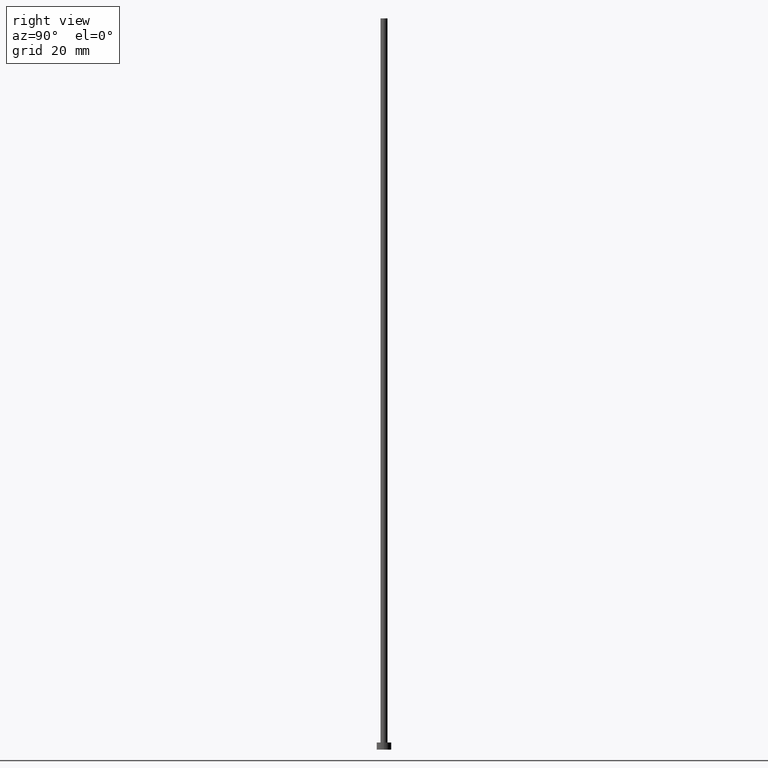
[diagram: clean part render]
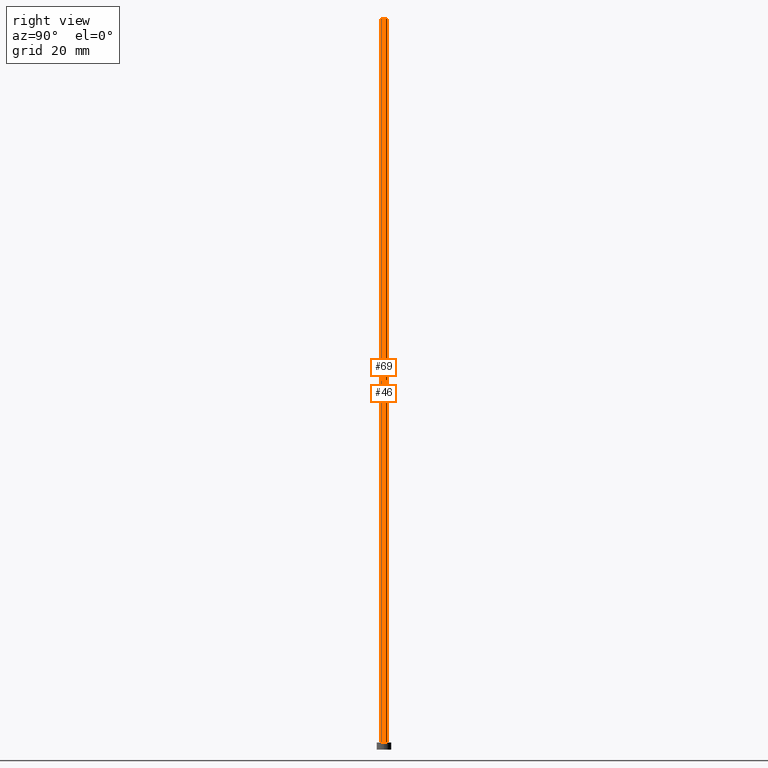
[diagram: same view with one multi-face feature highlighted, each face labeled with its STEP entity id]
A machine part, right view. The highlighted faces form ONE feature: a constant-radius fillet chain: 2 tangent blend faces with common blend radius 0.6 mm. The faces share edges in the B-rep.
Their STEP definitions:
[1] entity #69 (Cylinder):
#12 = EDGE_CURVE ( 'NONE', #224, #87, #51, .T. ) ;
#16 = VECTOR ( 'NONE', #76, 1000.000000000000000 ) ;
#33 = CYLINDRICAL_SURFACE ( 'NONE', #59, 0.5999999999999999778 ) ;
#36 = DIRECTION ( 'NONE',  ( -1.000000000000000000, 0.000000000000000000, 0.000000000000000000 ) ) ;
#38 = VERTEX_POINT ( 'NONE', #128 ) ;
#42 = CIRCLE ( 'NONE', #94, 0.5999999999999999778 ) ;
#43 = EDGE_CURVE ( 'NONE', #87, #38, #89, .T. ) ;
#50 = DIRECTION ( 'NONE',  ( -0.000000000000000000, -0.000000000000000000, -1.000000000000000000 ) ) ;
#51 = LINE ( 'NONE', #248, #16 ) ;
#59 = AXIS2_PLACEMENT_3D ( 'NONE', #229, #50, #36 ) ;
#66 = EDGE_LOOP ( 'NONE', ( #209, #85, #240, #96 ) ) ;
#69 = ADVANCED_FACE ( 'NONE', ( #149 ), #33, .T. ) ;
#72 = CARTESIAN_POINT ( 'NONE',  ( 0.5999999999999999778, 7.347880794884117764E-17, 125.0000000000000000 ) ) ;
#76 = DIRECTION ( 'NONE',  ( -0.000000000000000000, -0.000000000000000000, -1.000000000000000000 ) ) ;
#85 = ORIENTED_EDGE ( 'NONE', *, *, #222, .F. ) ;
#87 = VERTEX_POINT ( 'NONE', #167 ) ;
#88 = EDGE_CURVE ( 'NONE', #118, #38, #189, .T. ) ;
#89 = CIRCLE ( 'NONE', #213, 0.5999999999999999778 ) ;
#94 = AXIS2_PLACEMENT_3D ( 'NONE', #255, #135, #116 ) ;
#96 = ORIENTED_EDGE ( 'NONE', *, *, #43, .T. ) ;
#98 = CARTESIAN_POINT ( 'NONE',  ( -0.5999999999999999778, 0.000000000000000000, 125.0000000000000000 ) ) ;
#110 = DIRECTION ( 'NONE',  ( 0.000000000000000000, 0.000000000000000000, 1.000000000000000000 ) ) ;
#111 = DIRECTION ( 'NONE',  ( 1.000000000000000000, 0.000000000000000000, 0.000000000000000000 ) ) ;
#116 = DIRECTION ( 'NONE',  ( 1.000000000000000000, 0.000000000000000000, 0.000000000000000000 ) ) ;
#118 = VERTEX_POINT ( 'NONE', #126 ) ;
#126 = CARTESIAN_POINT ( 'NONE',  ( 0.5999999999999999778, 7.347880794884117764E-17, 125.0000000000000000 ) ) ;
#128 = CARTESIAN_POINT ( 'NONE',  ( 0.5999999999999999778, 7.347880794884117764E-17, 1.199999999999999956 ) ) ;
#135 = DIRECTION ( 'NONE',  ( 0.000000000000000000, 0.000000000000000000, 1.000000000000000000 ) ) ;
#146 = DIRECTION ( 'NONE',  ( -0.000000000000000000, -0.000000000000000000, -1.000000000000000000 ) ) ;
#149 = FACE_OUTER_BOUND ( 'NONE', #66, .T. ) ;
#167 = CARTESIAN_POINT ( 'NONE',  ( -0.5999999999999999778, 0.000000000000000000, 1.199999999999999956 ) ) ;
#175 = VECTOR ( 'NONE', #146, 1000.000000000000000 ) ;
#184 = CARTESIAN_POINT ( 'NONE',  ( 0.000000000000000000, 0.000000000000000000, 1.199999999999999956 ) ) ;
#189 = LINE ( 'NONE', #72, #175 ) ;
#209 = ORIENTED_EDGE ( 'NONE', *, *, #88, .F. ) ;
#213 = AXIS2_PLACEMENT_3D ( 'NONE', #184, #110, #111 ) ;
#222 = EDGE_CURVE ( 'NONE', #224, #118, #42, .T. ) ;
#224 = VERTEX_POINT ( 'NONE', #98 ) ;
#229 = CARTESIAN_POINT ( 'NONE',  ( 0.000000000000000000, 0.000000000000000000, 125.0000000000000000 ) ) ;
#240 = ORIENTED_EDGE ( 'NONE', *, *, #12, .T. ) ;
#248 = CARTESIAN_POINT ( 'NONE',  ( -0.5999999999999999778, 0.000000000000000000, 125.0000000000000000 ) ) ;
#255 = CARTESIAN_POINT ( 'NONE',  ( 0.000000000000000000, 0.000000000000000000, 125.0000000000000000 ) ) ;
[2] entity #46 (Cylinder):
#12 = EDGE_CURVE ( 'NONE', #224, #87, #51, .T. ) ;
#16 = VECTOR ( 'NONE', #76, 1000.000000000000000 ) ;
#18 = CARTESIAN_POINT ( 'NONE',  ( 0.000000000000000000, 0.000000000000000000, 125.0000000000000000 ) ) ;
#26 = EDGE_CURVE ( 'NONE', #118, #224, #157, .T. ) ;
#37 = AXIS2_PLACEMENT_3D ( 'NONE', #18, #93, #97 ) ;
#38 = VERTEX_POINT ( 'NONE', #128 ) ;
#46 = ADVANCED_FACE ( 'NONE', ( #188 ), #207, .T. ) ;
#51 = LINE ( 'NONE', #248, #16 ) ;
#72 = CARTESIAN_POINT ( 'NONE',  ( 0.5999999999999999778, 7.347880794884117764E-17, 125.0000000000000000 ) ) ;
#76 = DIRECTION ( 'NONE',  ( -0.000000000000000000, -0.000000000000000000, -1.000000000000000000 ) ) ;
#77 = CARTESIAN_POINT ( 'NONE',  ( 0.000000000000000000, 0.000000000000000000, 125.0000000000000000 ) ) ;
#87 = VERTEX_POINT ( 'NONE', #167 ) ;
#88 = EDGE_CURVE ( 'NONE', #118, #38, #189, .T. ) ;
#93 = DIRECTION ( 'NONE',  ( -0.000000000000000000, -0.000000000000000000, -1.000000000000000000 ) ) ;
#97 = DIRECTION ( 'NONE',  ( -1.000000000000000000, 0.000000000000000000, 0.000000000000000000 ) ) ;
#98 = CARTESIAN_POINT ( 'NONE',  ( -0.5999999999999999778, 0.000000000000000000, 125.0000000000000000 ) ) ;
#114 = CIRCLE ( 'NONE', #134, 0.5999999999999999778 ) ;
#118 = VERTEX_POINT ( 'NONE', #126 ) ;
#121 = ORIENTED_EDGE ( 'NONE', *, *, #12, .F. ) ;
#126 = CARTESIAN_POINT ( 'NONE',  ( 0.5999999999999999778, 7.347880794884117764E-17, 125.0000000000000000 ) ) ;
#128 = CARTESIAN_POINT ( 'NONE',  ( 0.5999999999999999778, 7.347880794884117764E-17, 1.199999999999999956 ) ) ;
#134 = AXIS2_PLACEMENT_3D ( 'NONE', #237, #193, #178 ) ;
#136 = AXIS2_PLACEMENT_3D ( 'NONE', #77, #233, #147 ) ;
#146 = DIRECTION ( 'NONE',  ( -0.000000000000000000, -0.000000000000000000, -1.000000000000000000 ) ) ;
#147 = DIRECTION ( 'NONE',  ( 1.000000000000000000, 0.000000000000000000, 0.000000000000000000 ) ) ;
#157 = CIRCLE ( 'NONE', #136, 0.5999999999999999778 ) ;
#164 = EDGE_LOOP ( 'NONE', ( #166, #251, #186, #121 ) ) ;
#166 = ORIENTED_EDGE ( 'NONE', *, *, #26, .F. ) ;
#167 = CARTESIAN_POINT ( 'NONE',  ( -0.5999999999999999778, 0.000000000000000000, 1.199999999999999956 ) ) ;
#175 = VECTOR ( 'NONE', #146, 1000.000000000000000 ) ;
#178 = DIRECTION ( 'NONE',  ( 1.000000000000000000, 0.000000000000000000, 0.000000000000000000 ) ) ;
#186 = ORIENTED_EDGE ( 'NONE', *, *, #235, .T. ) ;
#188 = FACE_OUTER_BOUND ( 'NONE', #164, .T. ) ;
#189 = LINE ( 'NONE', #72, #175 ) ;
#193 = DIRECTION ( 'NONE',  ( 0.000000000000000000, 0.000000000000000000, 1.000000000000000000 ) ) ;
#207 = CYLINDRICAL_SURFACE ( 'NONE', #37, 0.5999999999999999778 ) ;
#224 = VERTEX_POINT ( 'NONE', #98 ) ;
#233 = DIRECTION ( 'NONE',  ( 0.000000000000000000, 0.000000000000000000, 1.000000000000000000 ) ) ;
#235 = EDGE_CURVE ( 'NONE', #38, #87, #114, .T. ) ;
#237 = CARTESIAN_POINT ( 'NONE',  ( 0.000000000000000000, 0.000000000000000000, 1.199999999999999956 ) ) ;
#248 = CARTESIAN_POINT ( 'NONE',  ( -0.5999999999999999778, 0.000000000000000000, 125.0000000000000000 ) ) ;
#251 = ORIENTED_EDGE ( 'NONE', *, *, #88, .T. ) ;